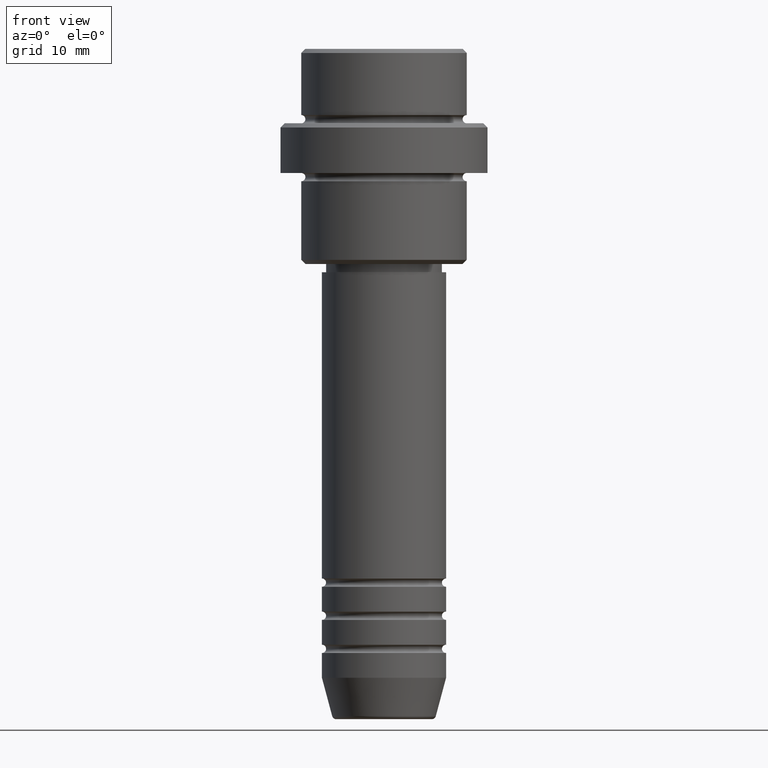
[diagram: clean part render]
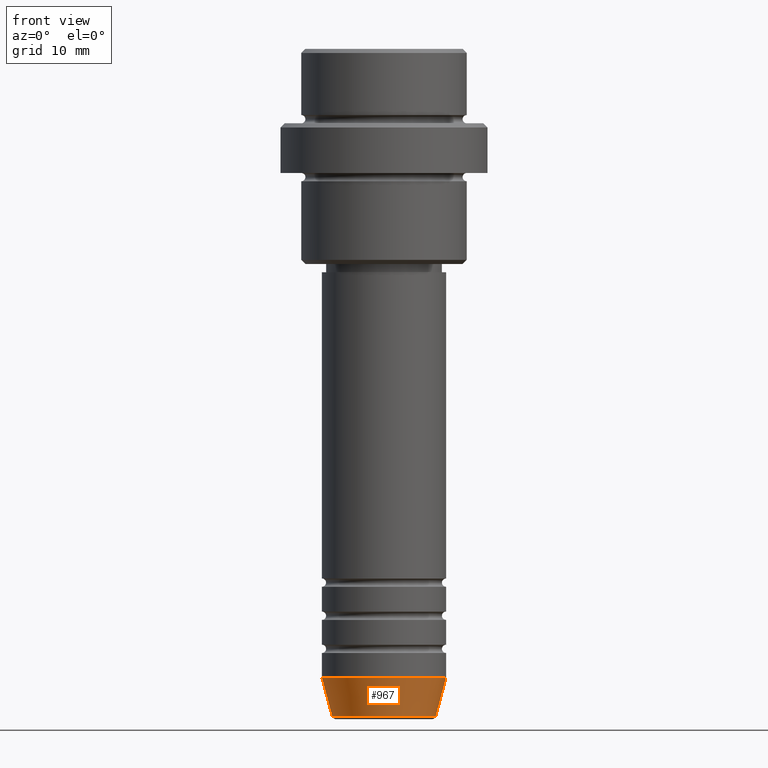
[diagram: same view with one face highlighted and labeled with its STEP entity id]
A machine part, front view. The second image highlights one B-rep face of the part: STEP entity #967.
In plain terms, the highlighted conical surface has half-angle 15 deg.
Its self-contained STEP definition (entity closure, byte-faithful):
#25 = CARTESIAN_POINT ( 'NONE',  ( 0.000000000000000000, 0.000000000000000000, -76.00000000000001421 ) ) ;
#129 = VECTOR ( 'NONE', #1055, 1000.000000000000114 ) ;
#202 = CIRCLE ( 'NONE', #1043, 7.500000000000000000 ) ;
#217 = CARTESIAN_POINT ( 'NONE',  ( 6.259553456999442211, 0.000000000000000000, -80.62940952255125637 ) ) ;
#251 = DIRECTION ( 'NONE',  ( 1.000000000000000000, 0.000000000000000000, 0.000000000000000000 ) ) ;
#368 = FACE_OUTER_BOUND ( 'NONE', #992, .T. ) ;
#446 = VERTEX_POINT ( 'NONE', #217 ) ;
#449 = AXIS2_PLACEMENT_3D ( 'NONE', #485, #1331, #251 ) ;
#458 = DIRECTION ( 'NONE',  ( -0.000000000000000000, -0.000000000000000000, 1.000000000000000000 ) ) ;
#470 = ORIENTED_EDGE ( 'NONE', *, *, #1127, .F. ) ;
#485 = CARTESIAN_POINT ( 'NONE',  ( 0.000000000000000000, 0.000000000000000000, -76.00000000000001421 ) ) ;
#500 = VERTEX_POINT ( 'NONE', #993 ) ;
#514 = ORIENTED_EDGE ( 'NONE', *, *, #933, .T. ) ;
#674 = DIRECTION ( 'NONE',  ( -0.2588190451025220162, 3.169619151431780349E-17, 0.9659258262890678681 ) ) ;
#747 = DIRECTION ( 'NONE',  ( -0.000000000000000000, -0.000000000000000000, 1.000000000000000000 ) ) ;
#748 = CARTESIAN_POINT ( 'NONE',  ( -7.500000000000000000, 9.184850993605147944E-16, -76.00000000000001421 ) ) ;
#762 = ORIENTED_EDGE ( 'NONE', *, *, #1291, .F. ) ;
#769 = AXIS2_PLACEMENT_3D ( 'NONE', #1371, #747, #1301 ) ;
#811 = LINE ( 'NONE', #1150, #1357 ) ;
#833 = EDGE_CURVE ( 'NONE', #1330, #446, #1383, .T. ) ;
#933 = EDGE_CURVE ( 'NONE', #446, #500, #1362, .T. ) ;
#938 = CARTESIAN_POINT ( 'NONE',  ( 7.500000000000000000, 0.000000000000000000, -76.00000000000001421 ) ) ;
#967 = ADVANCED_FACE ( 'NONE', ( #368 ), #1224, .T. ) ;
#984 = VERTEX_POINT ( 'NONE', #748 ) ;
#992 = EDGE_LOOP ( 'NONE', ( #762, #1403, #514, #470 ) ) ;
#993 = CARTESIAN_POINT ( 'NONE',  ( 7.500000000000000000, 0.000000000000000000, -76.00000000000001421 ) ) ;
#1009 = CARTESIAN_POINT ( 'NONE',  ( -6.259553456999443100, 8.425296549405632444E-16, -80.62940952255125637 ) ) ;
#1043 = AXIS2_PLACEMENT_3D ( 'NONE', #25, #458, #1226 ) ;
#1055 = DIRECTION ( 'NONE',  ( 0.2588190451025220162, 0.000000000000000000, 0.9659258262890678681 ) ) ;
#1127 = EDGE_CURVE ( 'NONE', #984, #500, #202, .T. ) ;
#1150 = CARTESIAN_POINT ( 'NONE',  ( -7.500000000000000000, 9.184850993605147944E-16, -76.00000000000001421 ) ) ;
#1224 = CONICAL_SURFACE ( 'NONE', #449, 7.500000000000000000, 0.2617993877991507956 ) ;
#1226 = DIRECTION ( 'NONE',  ( 1.000000000000000000, 0.000000000000000000, 0.000000000000000000 ) ) ;
#1291 = EDGE_CURVE ( 'NONE', #1330, #984, #811, .T. ) ;
#1301 = DIRECTION ( 'NONE',  ( 1.000000000000000000, 0.000000000000000000, 0.000000000000000000 ) ) ;
#1330 = VERTEX_POINT ( 'NONE', #1009 ) ;
#1331 = DIRECTION ( 'NONE',  ( -0.000000000000000000, -0.000000000000000000, 1.000000000000000000 ) ) ;
#1357 = VECTOR ( 'NONE', #674, 1000.000000000000114 ) ;
#1362 = LINE ( 'NONE', #938, #129 ) ;
#1371 = CARTESIAN_POINT ( 'NONE',  ( 0.000000000000000000, 0.000000000000000000, -80.62940952255125637 ) ) ;
#1383 = CIRCLE ( 'NONE', #769, 6.259553456999442211 ) ;
#1403 = ORIENTED_EDGE ( 'NONE', *, *, #833, .T. ) ;